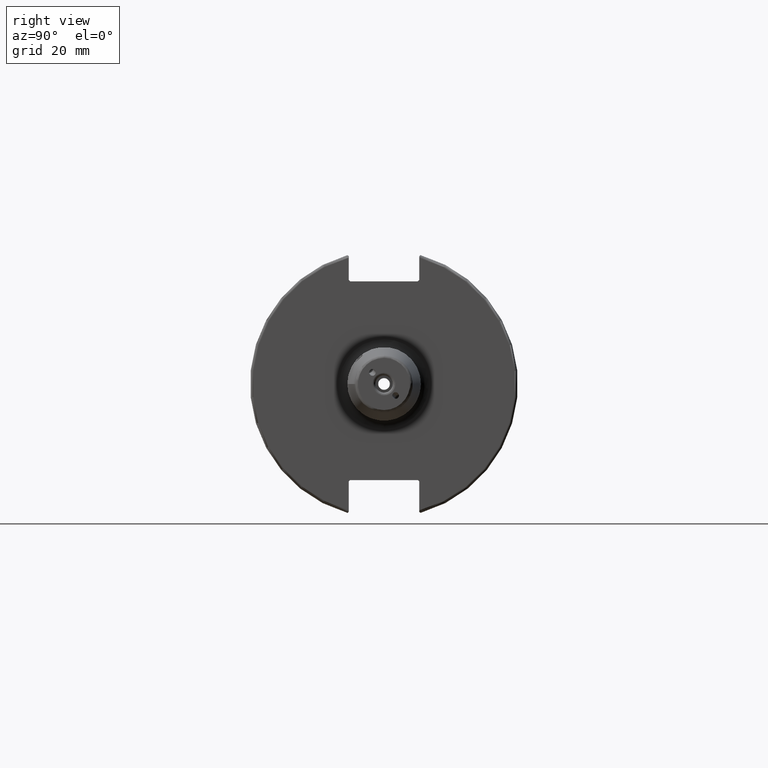
[diagram: clean part render]
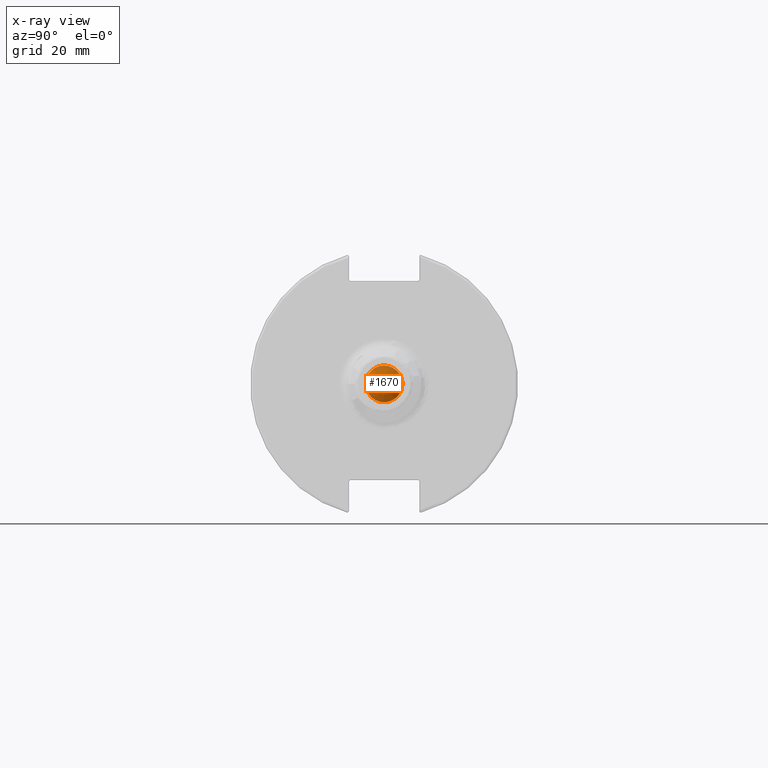
[diagram: x-ray — body ghosted, one internal face saturated and labeled with its STEP entity id]
A machine part, right view, then the same camera in x-ray: the body is ghosted and one INTERNAL B-rep face — a face not visible from any outside direction — is saturated and labeled: STEP entity #1670.
In plain terms, the highlighted conical surface has half-angle 59 deg.
Its self-contained STEP definition (entity closure, byte-faithful):
#106=CONICAL_SURFACE('',#1815,3.375,1.02974425867665);
#138=CIRCLE('',#1808,2.15);
#139=CIRCLE('',#1809,2.15);
#143=CIRCLE('',#1816,6.75);
#217=FACE_OUTER_BOUND('',#317,.T.);
#317=EDGE_LOOP('',(#1217,#1218,#1219,#1220,#1221));
#492=LINE('',#2758,#593);
#593=VECTOR('',#2069,3.375);
#720=VERTEX_POINT('',#2740);
#721=VERTEX_POINT('',#2742);
#725=VERTEX_POINT('',#2756);
#908=EDGE_CURVE('',#721,#720,#138,.T.);
#909=EDGE_CURVE('',#720,#721,#139,.T.);
#915=EDGE_CURVE('',#725,#725,#143,.T.);
#916=EDGE_CURVE('',#725,#721,#492,.T.);
#1217=ORIENTED_EDGE('',*,*,#915,.T.);
#1218=ORIENTED_EDGE('',*,*,#916,.T.);
#1219=ORIENTED_EDGE('',*,*,#908,.T.);
#1220=ORIENTED_EDGE('',*,*,#909,.T.);
#1221=ORIENTED_EDGE('',*,*,#916,.F.);
#1670=ADVANCED_FACE('',(#217),#106,.F.);
#1808=AXIS2_PLACEMENT_3D('',#2743,#2049,#2050);
#1809=AXIS2_PLACEMENT_3D('',#2744,#2051,#2052);
#1815=AXIS2_PLACEMENT_3D('',#2755,#2065,#2066);
#1816=AXIS2_PLACEMENT_3D('',#2757,#2067,#2068);
#2049=DIRECTION('center_axis',(1.,0.,0.));
#2050=DIRECTION('ref_axis',(0.,0.,-1.));
#2051=DIRECTION('center_axis',(1.,0.,0.));
#2052=DIRECTION('ref_axis',(0.,0.,-1.));
#2065=DIRECTION('center_axis',(-1.,0.,0.));
#2066=DIRECTION('ref_axis',(0.,0.,1.));
#2067=DIRECTION('center_axis',(-1.,0.,0.));
#2068=DIRECTION('ref_axis',(0.,0.,1.));
#2069=DIRECTION('',(0.515038074910054,1.04972719113862E-16,0.857167300702112));
#2740=CARTESIAN_POINT('',(79.1639588475268,-2.63299061816681E-16,2.15));
#2742=CARTESIAN_POINT('',(79.1639588475268,-2.6329906181668E-16,-2.15));
#2743=CARTESIAN_POINT('Origin',(79.1639588475268,0.,0.));
#2744=CARTESIAN_POINT('Origin',(79.1639588475268,0.,0.));
#2755=CARTESIAN_POINT('Origin',(78.427904589218,0.,0.));
#2756=CARTESIAN_POINT('',(76.4,-8.26636589424463E-16,-6.75));
#2757=CARTESIAN_POINT('Origin',(76.4,0.,0.));
#2758=CARTESIAN_POINT('',(78.427904589218,-4.13318294712232E-16,-3.375));